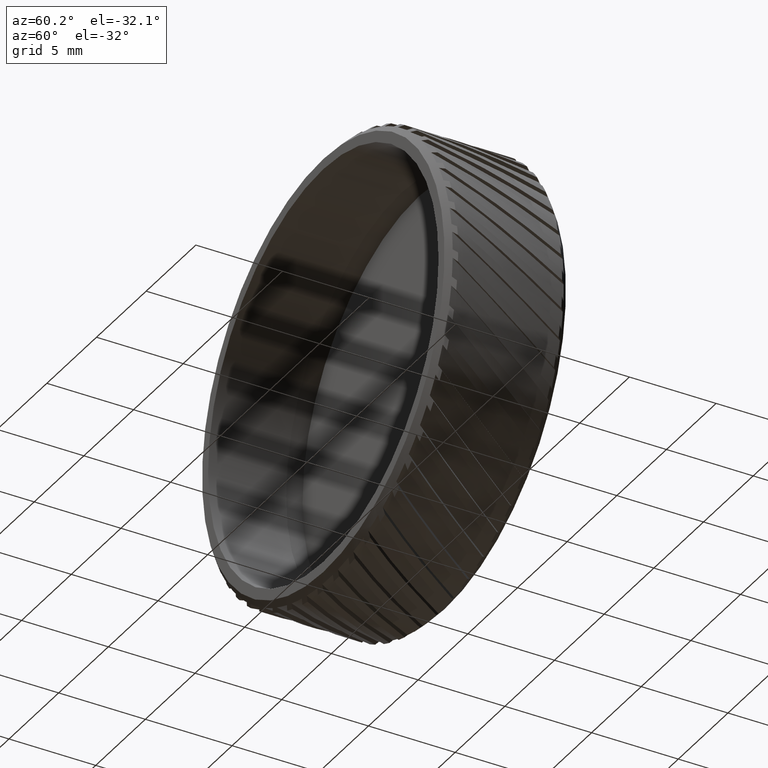
[diagram: clean part render]
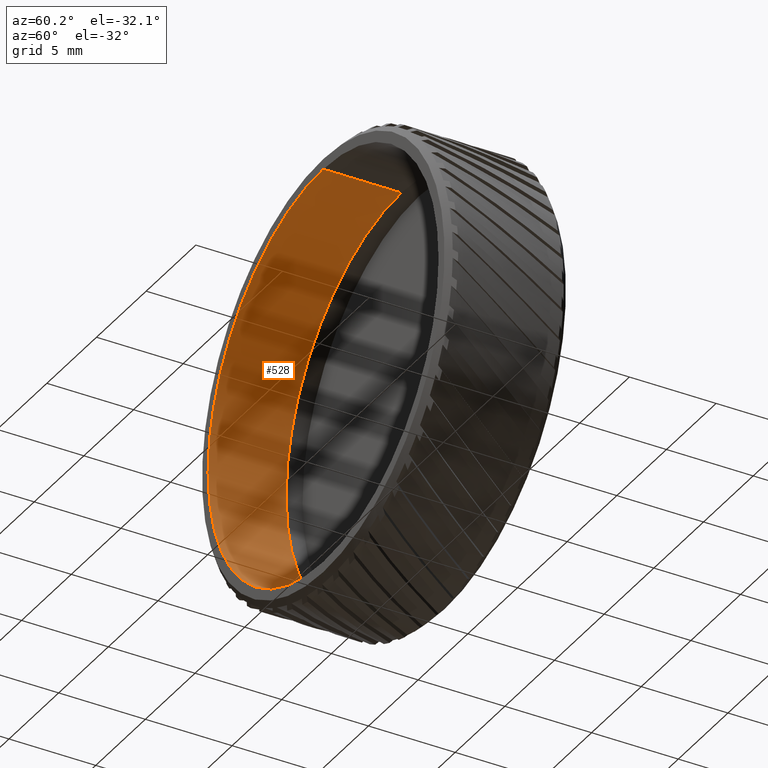
[diagram: same view with one face highlighted and labeled with its STEP entity id]
A machine part, auxiliary view. The second image highlights one B-rep face of the part: STEP entity #528.
In plain terms, the highlighted cylindrical surface (partial cylindrical patch) has radius 11.6 mm, axis along (-0, 1, -0).
Its self-contained STEP definition (entity closure, byte-faithful):
#470 = CARTESIAN_POINT ( 'NONE',  ( 1.420590287010930300E-015, -8.830884482231917700, -11.60000000000000700 ) ) ;
#528 = ADVANCED_FACE ( 'NONE', ( #1446 ), #4350, .F. ) ;
#686 = VERTEX_POINT ( 'NONE', #4008 ) ;
#703 = CARTESIAN_POINT ( 'NONE',  ( 0.0000000000000000000, -8.830884482231917700, 0.0000000000000000000 ) ) ;
#822 = AXIS2_PLACEMENT_3D ( 'NONE', #3735, #1428, #3202 ) ;
#1201 = VERTEX_POINT ( 'NONE', #470 ) ;
#1279 = ORIENTED_EDGE ( 'NONE', *, *, #2977, .T. ) ;
#1428 = DIRECTION ( 'NONE',  ( -0.0000000000000000000, 1.000000000000000000, -0.0000000000000000000 ) ) ;
#1446 = FACE_OUTER_BOUND ( 'NONE', #4364, .T. ) ;
#1633 = ORIENTED_EDGE ( 'NONE', *, *, #5089, .F. ) ;
#1928 = EDGE_CURVE ( 'NONE', #1201, #686, #6188, .T. ) ;
#2139 = VERTEX_POINT ( 'NONE', #5052 ) ;
#2160 = CARTESIAN_POINT ( 'NONE',  ( 0.0000000000000000000, -13.33088448223191600, 0.0000000000000000000 ) ) ;
#2540 = AXIS2_PLACEMENT_3D ( 'NONE', #703, #2545, #4905 ) ;
#2545 = DIRECTION ( 'NONE',  ( -0.0000000000000000000, 1.000000000000000000, -0.0000000000000000000 ) ) ;
#2769 = DIRECTION ( 'NONE',  ( -0.0000000000000000000, 1.000000000000000000, -0.0000000000000000000 ) ) ;
#2977 = EDGE_CURVE ( 'NONE', #2139, #1201, #6091, .T. ) ;
#3202 = DIRECTION ( 'NONE',  ( 0.0000000000000000000, 0.0000000000000000000, 1.000000000000000000 ) ) ;
#3382 = DIRECTION ( 'NONE',  ( 0.0000000000000000000, 0.0000000000000000000, 1.000000000000000000 ) ) ;
#3536 = LINE ( 'NONE', #7475, #4732 ) ;
#3735 = CARTESIAN_POINT ( 'NONE',  ( 0.0000000000000000000, 46.02073106022621100, 0.0000000000000000000 ) ) ;
#3953 = DIRECTION ( 'NONE',  ( -0.0000000000000000000, 1.000000000000000000, -0.0000000000000000000 ) ) ;
#4008 = CARTESIAN_POINT ( 'NONE',  ( 0.0000000000000000000, -8.830884482231917700, 11.60000000000000700 ) ) ;
#4290 = AXIS2_PLACEMENT_3D ( 'NONE', #2160, #2769, #3382 ) ;
#4309 = EDGE_CURVE ( 'NONE', #4881, #686, #3536, .T. ) ;
#4350 = CYLINDRICAL_SURFACE ( 'NONE', #822, 11.60000000000000700 ) ;
#4364 = EDGE_LOOP ( 'NONE', ( #1633, #1279, #4727, #6881 ) ) ;
#4727 = ORIENTED_EDGE ( 'NONE', *, *, #1928, .T. ) ;
#4732 = VECTOR ( 'NONE', #3953, 1000.000000000000000 ) ;
#4881 = VERTEX_POINT ( 'NONE', #5532 ) ;
#4905 = DIRECTION ( 'NONE',  ( 0.0000000000000000000, 0.0000000000000000000, 1.000000000000000000 ) ) ;
#5052 = CARTESIAN_POINT ( 'NONE',  ( 1.420590287010930300E-015, -13.33088448223191600, -11.60000000000000700 ) ) ;
#5089 = EDGE_CURVE ( 'NONE', #2139, #4881, #6575, .T. ) ;
#5190 = CARTESIAN_POINT ( 'NONE',  ( 1.420590287010930300E-015, 46.02073106022621100, -11.60000000000000700 ) ) ;
#5532 = CARTESIAN_POINT ( 'NONE',  ( 0.0000000000000000000, -13.33088448223191600, 11.60000000000000700 ) ) ;
#6091 = LINE ( 'NONE', #5190, #6837 ) ;
#6188 = CIRCLE ( 'NONE', #2540, 11.60000000000000700 ) ;
#6328 = DIRECTION ( 'NONE',  ( -0.0000000000000000000, 1.000000000000000000, -0.0000000000000000000 ) ) ;
#6575 = CIRCLE ( 'NONE', #4290, 11.60000000000000700 ) ;
#6837 = VECTOR ( 'NONE', #6328, 1000.000000000000000 ) ;
#6881 = ORIENTED_EDGE ( 'NONE', *, *, #4309, .F. ) ;
#7475 = CARTESIAN_POINT ( 'NONE',  ( 0.0000000000000000000, 46.02073106022621100, 11.60000000000000700 ) ) ;